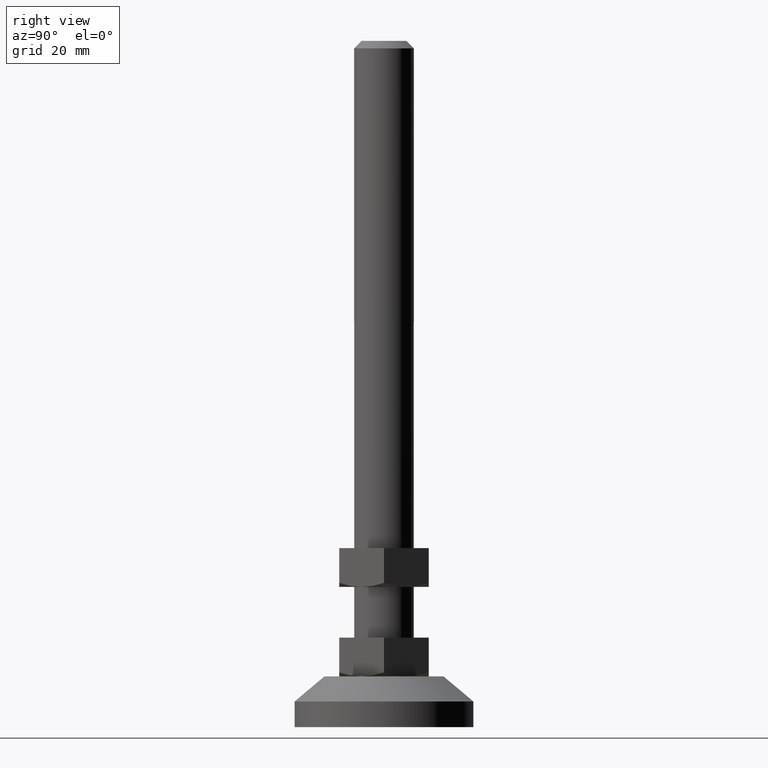
[diagram: clean part render]
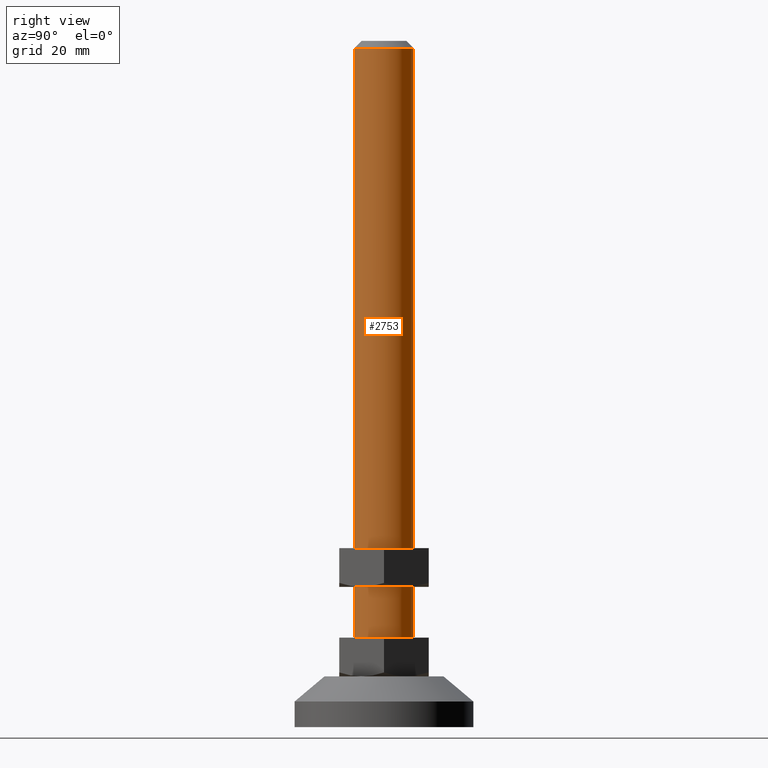
[diagram: same view with one face highlighted and labeled with its STEP entity id]
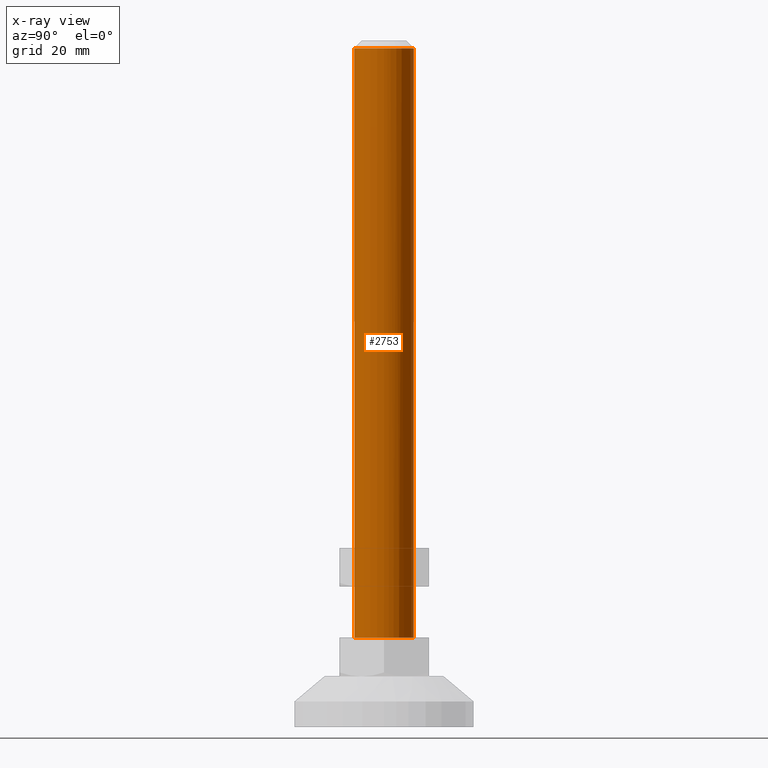
[diagram: x-ray of the same camera — body ghosted, the highlighted face saturated]
A machine part, right view. The second image highlights one B-rep face of the part: STEP entity #2753.
The next image is the same camera in x-ray: the body ghosted, the highlighted face saturated — about 0% of this face is hidden behind the body in this view.
In plain terms, the highlighted face is a freeform B-spline surface patch.
Its self-contained STEP definition (entity closure, byte-faithful):
#2536=CARTESIAN_POINT('',(0.087265358027366,9.999619231028870,227.499999999586410));
#2537=VERTEX_POINT('',#2536);
#2543=CARTESIAN_POINT('',(-0.610485395824550,9.981347984189556,227.500000000000000));
#2544=VERTEX_POINT('',#2543);
#2545=CARTESIAN_POINT('',(-0.610485395824550,9.981347984189556,227.500000000000000));
#2546=CARTESIAN_POINT('',(-0.378219725437799,9.995555025481881,227.499999999862210));
#2547=CARTESIAN_POINT('',(-0.145421943585970,10.001651142496581,227.499999999724200));
#2548=CARTESIAN_POINT('',(0.087265358027366,9.999619231028870,227.499999999586410));
#2549=B_SPLINE_CURVE_WITH_KNOTS('',3,(#2545,#2546,#2547,#2548),.UNSPECIFIED.,.F.,.U.,(4,4),(0.000000024053162,0.698140563642129),.UNSPECIFIED.);
#2550=EDGE_CURVE('',#2544,#2537,#2549,.T.);
#2586=CARTESIAN_POINT('',(0.610485395824550,-9.981347984189556,227.500000000000000));
#2587=VERTEX_POINT('',#2586);
#2595=CARTESIAN_POINT('',(10.0,0.0,227.500000000000000));
#2596=VERTEX_POINT('',#2595);
#2597=CARTESIAN_POINT('',(10.0,0.0,227.500000000000000));
#2598=CARTESIAN_POINT('',(10.000000000000002,-9.407060668607517,227.500000000000000));
#2599=CARTESIAN_POINT('',(0.610485395824550,-9.981347984189558,227.500000000000000));
#2607=(BOUNDED_CURVE()B_SPLINE_CURVE(2,(#2597,#2598,#2599),.UNSPECIFIED.,.F.,.U.)B_SPLINE_CURVE_WITH_KNOTS((3,3),(0.0,0.239332962233740),.UNSPECIFIED.)CURVE()GEOMETRIC_REPRESENTATION_ITEM()RATIONAL_B_SPLINE_CURVE((1.0,0.719603993292806,0.976072041655567))REPRESENTATION_ITEM(''));
#2608=EDGE_CURVE('',#2596,#2587,#2607,.T.);
#2610=CARTESIAN_POINT('',(0.087265358027366,9.999619231028870,227.499999999586380));
#2611=CARTESIAN_POINT('',(10.000000000001805,9.913112103142794,227.499999999793230));
#2612=CARTESIAN_POINT('',(10.0,0.0,227.500000000000000));
#2620=(BOUNDED_CURVE()B_SPLINE_CURVE(2,(#2610,#2611,#2612),.UNSPECIFIED.,.F.,.U.)B_SPLINE_CURVE_WITH_KNOTS((3,3),(0.751539894388537,1.0),.UNSPECIFIED.)CURVE()GEOMETRIC_REPRESENTATION_ITEM()RATIONAL_B_SPLINE_CURVE((0.996414027976477,0.708910879682913,1.0))REPRESENTATION_ITEM(''));
#2621=EDGE_CURVE('',#2537,#2596,#2620,.T.);
#2648=CARTESIAN_POINT('',(0.610485395824550,-9.981347984189556,29.999999999999989));
#2649=VERTEX_POINT('',#2648);
#2667=CARTESIAN_POINT('',(0.610485395824550,-9.981347984189556,227.500000000000000));
#2668=CARTESIAN_POINT('',(0.610485395824550,-9.981347984189556,29.999999999999989));
#2669=QUASI_UNIFORM_CURVE('',1,(#2667,#2668),.UNSPECIFIED.,.F.,.U.);
#2670=EDGE_CURVE('',#2587,#2649,#2669,.T.);
#2675=CARTESIAN_POINT('',(-0.610485395824550,9.981347984189556,29.999999999999989));
#2676=VERTEX_POINT('',#2675);
#2677=CARTESIAN_POINT('',(-0.610485395824550,9.981347984189556,227.500000000000000));
#2678=CARTESIAN_POINT('',(-0.610485395824550,9.981347984189556,29.999999999999989));
#2679=QUASI_UNIFORM_CURVE('',1,(#2677,#2678),.UNSPECIFIED.,.F.,.U.);
#2680=EDGE_CURVE('',#2544,#2676,#2679,.T.);
#2698=CARTESIAN_POINT('',(-0.610485395348570,9.981347984218667,232.437500000000000));
#2699=CARTESIAN_POINT('',(9.370862588870097,10.591833379567237,232.437500000000090));
#2700=CARTESIAN_POINT('',(9.981347984218667,0.610485395348570,232.437500000000000));
#2701=CARTESIAN_POINT('',(10.591833379567237,-9.370862588870097,232.437500000000090));
#2702=CARTESIAN_POINT('',(0.610485395348570,-9.981347984218667,232.437500000000000));
#2703=CARTESIAN_POINT('',(-0.610485395348570,9.981347984218667,24.939062500000009));
#2704=CARTESIAN_POINT('',(9.370862588870097,10.591833379567237,24.939062500000006));
#2705=CARTESIAN_POINT('',(9.981347984218667,0.610485395348570,24.939062500000009));
#2706=CARTESIAN_POINT('',(10.591833379567237,-9.370862588870097,24.939062500000006));
#2707=CARTESIAN_POINT('',(0.610485395348570,-9.981347984218667,24.939062500000009));
#2715=(BOUNDED_SURFACE()B_SPLINE_SURFACE(2,1,((#2698,#2703),(#2699,#2704),(#2700,#2705),(#2701,#2706),(#2702,#2707)),.UNSPECIFIED.,.F.,.F.,.U.)B_SPLINE_SURFACE_WITH_KNOTS((3,2,3),(2,2),(0.0,16.568542494923800,33.137084989847587),(0.0,207.498437500000110),.UNSPECIFIED.)GEOMETRIC_REPRESENTATION_ITEM()RATIONAL_B_SPLINE_SURFACE(((1.0,1.0),(0.707106781186548,0.707106781186548),(1.0,1.0),(0.707106781186548,0.707106781186548),(1.0,1.0)))REPRESENTATION_ITEM('')SURFACE());
#2716=CARTESIAN_POINT('',(10.0,0.0,30.0));
#2717=VERTEX_POINT('',#2716);
#2718=CARTESIAN_POINT('',(10.0,0.0,30.0));
#2719=CARTESIAN_POINT('',(10.0,-9.407060668607514,29.999999999999996));
#2720=CARTESIAN_POINT('',(0.610485395824551,-9.981347984189558,30.0));
#2728=(BOUNDED_CURVE()B_SPLINE_CURVE(2,(#2718,#2719,#2720),.UNSPECIFIED.,.F.,.U.)B_SPLINE_CURVE_WITH_KNOTS((3,3),(0.0,0.239332962233740),.UNSPECIFIED.)CURVE()GEOMETRIC_REPRESENTATION_ITEM()RATIONAL_B_SPLINE_CURVE((1.0,0.719603993292806,0.976072041655567))REPRESENTATION_ITEM(''));
#2729=EDGE_CURVE('',#2717,#2649,#2728,.T.);
#2730=ORIENTED_EDGE('',*,*,#2729,.F.);
#2731=CARTESIAN_POINT('',(-0.610485395824553,9.981347984189556,30.0));
#2732=CARTESIAN_POINT('',(-0.305527633224548,9.999999999999998,30.000000000000007));
#2733=CARTESIAN_POINT('',(0.0,10.0,30.0));
#2734=CARTESIAN_POINT('',(10.000000000000002,10.000000000000002,30.000000000000004));
#2735=CARTESIAN_POINT('',(10.0,0.0,30.0));
#2743=(BOUNDED_CURVE()B_SPLINE_CURVE(2,(#2731,#2732,#2733,#2734,#2735),.UNSPECIFIED.,.F.,.U.)B_SPLINE_CURVE_WITH_KNOTS((3,2,3),(0.739332962233740,0.750000000000000,1.0),.UNSPECIFIED.)CURVE()GEOMETRIC_REPRESENTATION_ITEM()RATIONAL_B_SPLINE_CURVE((0.976072041655567,0.987502787893742,1.0,0.707106781186548,1.0))REPRESENTATION_ITEM(''));
#2744=EDGE_CURVE('',#2676,#2717,#2743,.T.);
#2745=ORIENTED_EDGE('',*,*,#2744,.F.);
#2746=ORIENTED_EDGE('',*,*,#2680,.F.);
#2747=ORIENTED_EDGE('',*,*,#2550,.T.);
#2748=ORIENTED_EDGE('',*,*,#2621,.T.);
#2749=ORIENTED_EDGE('',*,*,#2608,.T.);
#2750=ORIENTED_EDGE('',*,*,#2670,.T.);
#2751=EDGE_LOOP('',(#2730,#2745,#2746,#2747,#2748,#2749,#2750));
#2752=FACE_OUTER_BOUND('',#2751,.T.);
#2753=ADVANCED_FACE('',(#2752),#2715,.T.);